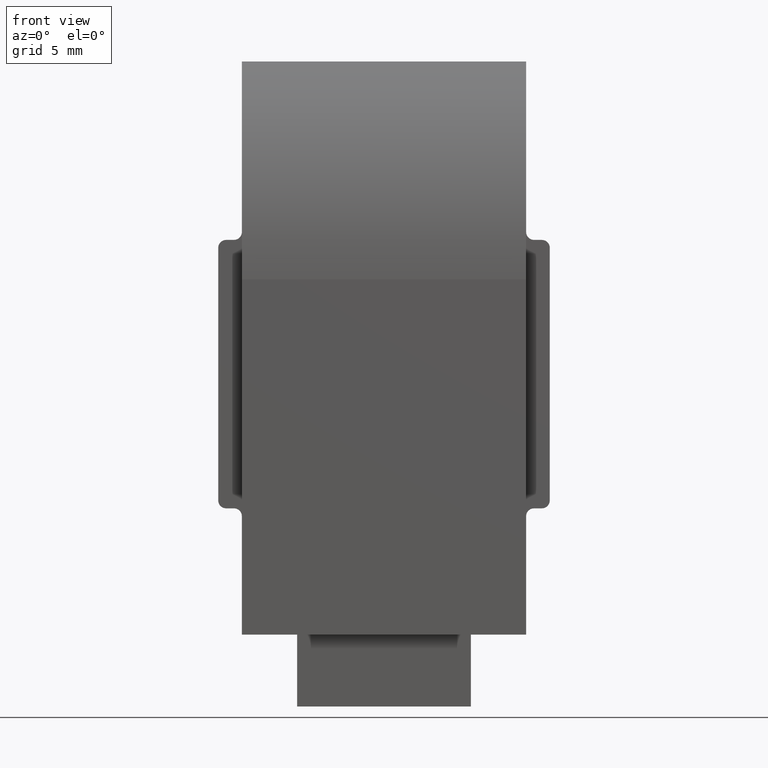
[diagram: clean part render]
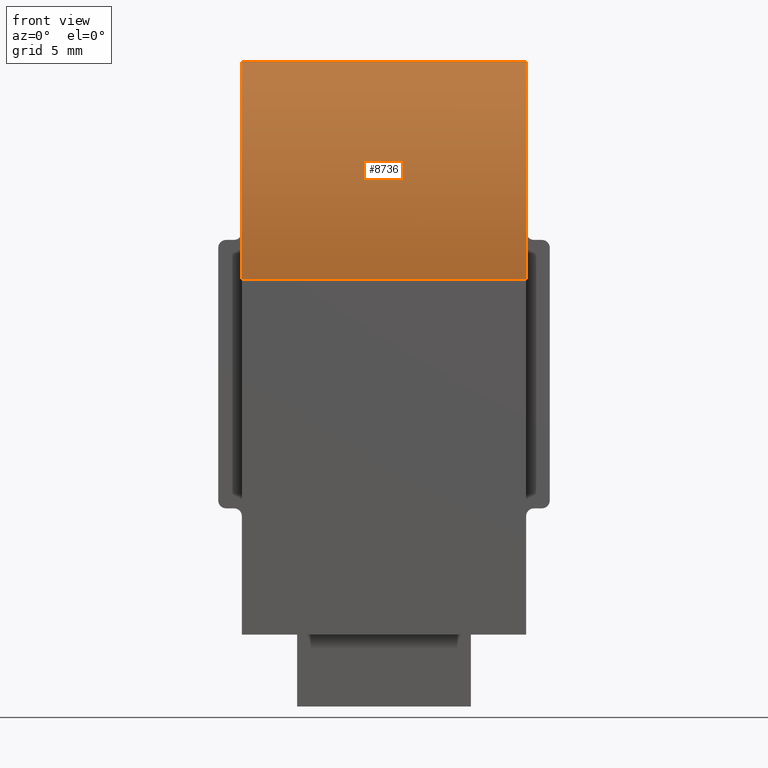
[diagram: same view with one face highlighted and labeled with its STEP entity id]
A machine part, front view. The second image highlights one B-rep face of the part: STEP entity #8736.
In plain terms, the highlighted cylindrical surface (partial cylindrical patch) has radius 22.5 mm, axis along (-1, -0, -0).
Its self-contained STEP definition (entity closure, byte-faithful):
#117 = CARTESIAN_POINT ( 'NONE',  ( 9.000000000000000000, 4.728956136456109682, 36.29999999999999716 ) ) ;
#118 = AXIS2_PLACEMENT_3D ( 'NONE', #15979, #14688, #6707 ) ;
#1111 = CARTESIAN_POINT ( 'NONE',  ( 9.000000000000000000, -1.387778780781445676E-14, 22.50000000000001066 ) ) ;
#1408 = EDGE_CURVE ( 'NONE', #6340, #13625, #15654, .T. ) ;
#2289 = DIRECTION ( 'NONE',  ( -1.000000000000000000, -0.000000000000000000, -0.000000000000000000 ) ) ;
#2526 = EDGE_CURVE ( 'NONE', #14425, #6340, #13984, .T. ) ;
#2702 = DIRECTION ( 'NONE',  ( -1.000000000000000000, -0.000000000000000000, -0.000000000000000000 ) ) ;
#3744 = CARTESIAN_POINT ( 'NONE',  ( 9.000000000000000000, -1.387778780781445676E-14, 22.50000000000001066 ) ) ;
#4026 = DIRECTION ( 'NONE',  ( 0.000000000000000000, 0.000000000000000000, 1.000000000000000000 ) ) ;
#5059 = DIRECTION ( 'NONE',  ( -1.000000000000000000, -0.000000000000000000, -0.000000000000000000 ) ) ;
#5073 = VECTOR ( 'NONE', #2289, 1000.000000000000000 ) ;
#6340 = VERTEX_POINT ( 'NONE', #12044 ) ;
#6707 = DIRECTION ( 'NONE',  ( 0.000000000000000000, 0.000000000000000000, -1.000000000000000000 ) ) ;
#6893 = CIRCLE ( 'NONE', #9732, 22.50000000000000711 ) ;
#7432 = DIRECTION ( 'NONE',  ( 1.000000000000000000, -0.000000000000000000, 0.000000000000000000 ) ) ;
#7544 = CARTESIAN_POINT ( 'NONE',  ( 9.000000000000000000, 4.728956136456109682, 36.29999999999999716 ) ) ;
#8567 = VECTOR ( 'NONE', #5059, 1000.000000000000000 ) ;
#8736 = ADVANCED_FACE ( 'NONE', ( #10878 ), #10268, .T. ) ;
#9148 = AXIS2_PLACEMENT_3D ( 'NONE', #14724, #2702, #4026 ) ;
#9323 = EDGE_CURVE ( 'NONE', #14425, #14381, #6893, .T. ) ;
#9401 = EDGE_CURVE ( 'NONE', #14381, #13625, #11506, .T. ) ;
#9732 = AXIS2_PLACEMENT_3D ( 'NONE', #15477, #7432, #10138 ) ;
#10138 = DIRECTION ( 'NONE',  ( 0.000000000000000000, 0.000000000000000000, -1.000000000000000000 ) ) ;
#10268 = CYLINDRICAL_SURFACE ( 'NONE', #9148, 22.50000000000000355 ) ;
#10878 = FACE_OUTER_BOUND ( 'NONE', #14458, .T. ) ;
#11293 = ORIENTED_EDGE ( 'NONE', *, *, #2526, .T. ) ;
#11506 = LINE ( 'NONE', #3744, #8567 ) ;
#11765 = ORIENTED_EDGE ( 'NONE', *, *, #1408, .T. ) ;
#12044 = CARTESIAN_POINT ( 'NONE',  ( -9.000000000000000000, 4.728956136456109682, 36.29999999999999716 ) ) ;
#12244 = ORIENTED_EDGE ( 'NONE', *, *, #9323, .F. ) ;
#13296 = CARTESIAN_POINT ( 'NONE',  ( -9.000000000000000000, -1.387778780781445676E-14, 22.50000000000001066 ) ) ;
#13625 = VERTEX_POINT ( 'NONE', #13296 ) ;
#13984 = LINE ( 'NONE', #7544, #5073 ) ;
#14381 = VERTEX_POINT ( 'NONE', #1111 ) ;
#14425 = VERTEX_POINT ( 'NONE', #117 ) ;
#14446 = ORIENTED_EDGE ( 'NONE', *, *, #9401, .F. ) ;
#14458 = EDGE_LOOP ( 'NONE', ( #11765, #14446, #12244, #11293 ) ) ;
#14688 = DIRECTION ( 'NONE',  ( 1.000000000000000000, -0.000000000000000000, 0.000000000000000000 ) ) ;
#14724 = CARTESIAN_POINT ( 'NONE',  ( 9.000000000000000000, 22.49999999999999289, 22.50000000000001066 ) ) ;
#15477 = CARTESIAN_POINT ( 'NONE',  ( 9.000000000000000000, 22.49999999999999289, 22.50000000000001066 ) ) ;
#15654 = CIRCLE ( 'NONE', #118, 22.50000000000000711 ) ;
#15979 = CARTESIAN_POINT ( 'NONE',  ( -9.000000000000000000, 22.49999999999999289, 22.50000000000001066 ) ) ;